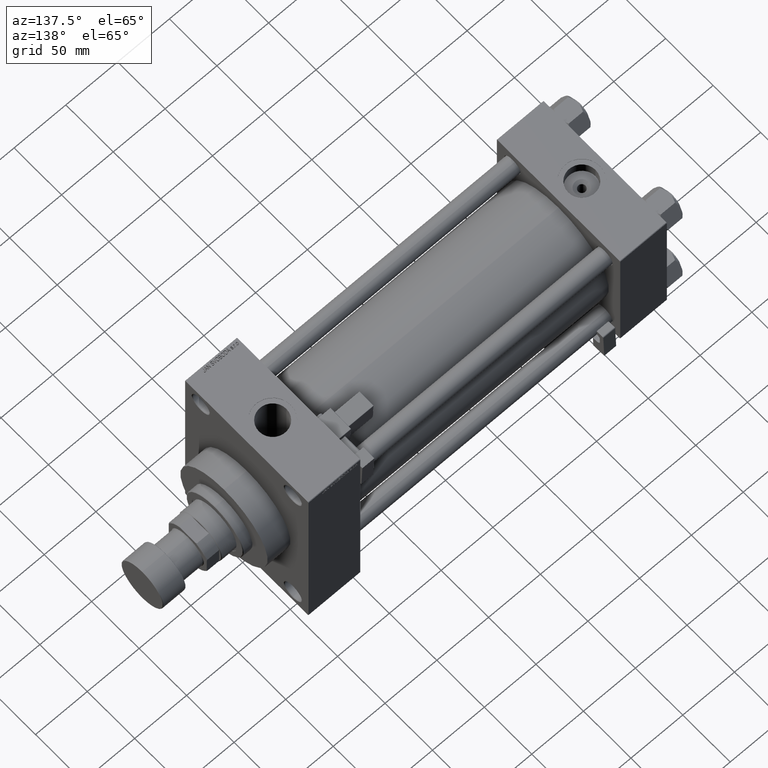
[diagram: clean part render]
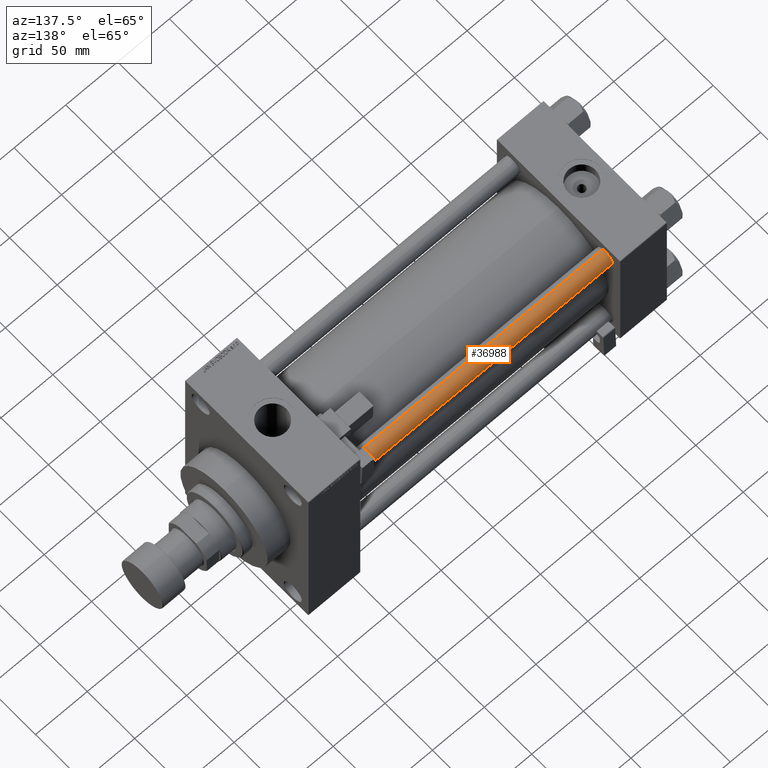
[diagram: same view with one face highlighted and labeled with its STEP entity id]
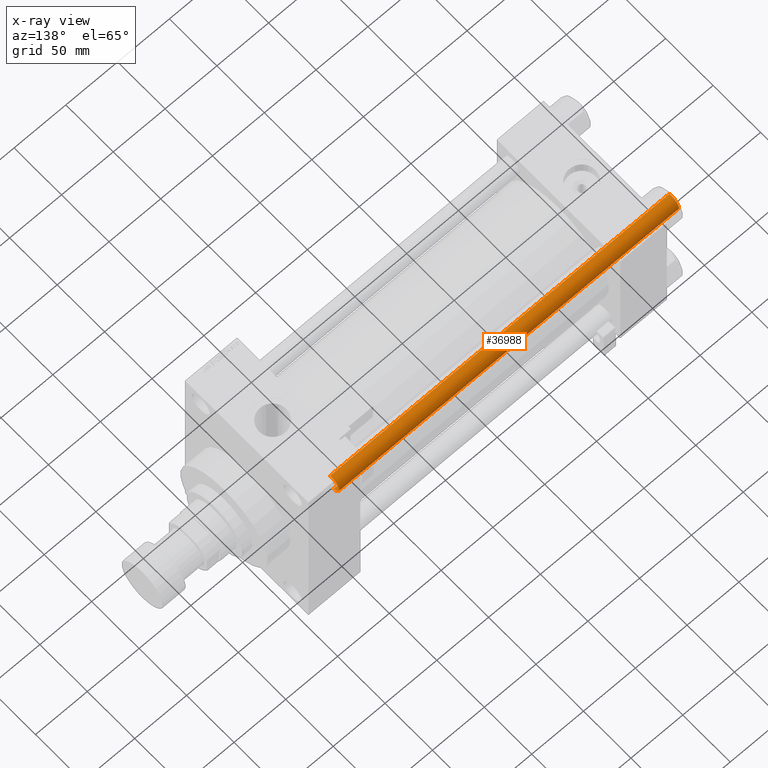
[diagram: x-ray of the same camera — body ghosted, the highlighted face saturated]
A machine part, auxiliary view. The second image highlights one B-rep face of the part: STEP entity #36988.
The next image is the same camera in x-ray: the body ghosted, the highlighted face saturated — about 0% of this face is hidden behind the body in this view.
In plain terms, the highlighted cylindrical surface (edge-blend (fillet) strip) has radius 8 mm, axis along (-1, -0, 0).
Its self-contained STEP definition (entity closure, byte-faithful):
#730 = EDGE_CURVE ( 'NONE', #21113, #34640, #20180, .T. ) ;
#2906 = VECTOR ( 'NONE', #42761, 1000.000000000000000 ) ;
#3926 = CARTESIAN_POINT ( 'NONE',  ( -8.000000000000000000, 0.000000000000000000, 329.0000000000000000 ) ) ;
#5962 = DIRECTION ( 'NONE',  ( 1.000000000000000000, 0.000000000000000000, 0.000000000000000000 ) ) ;
#7072 = CARTESIAN_POINT ( 'NONE',  ( 8.000000000000000000, 9.797174393178825657E-16, 0.4999999999998894218 ) ) ;
#8963 = CARTESIAN_POINT ( 'NONE',  ( -8.000000000000000000, 0.000000000000000000, 0.4999999999998894218 ) ) ;
#10216 = EDGE_CURVE ( 'NONE', #15969, #34640, #25340, .T. ) ;
#10429 = DIRECTION ( 'NONE',  ( 0.000000000000000000, 0.000000000000000000, -1.000000000000000000 ) ) ;
#11409 = EDGE_LOOP ( 'NONE', ( #42206, #37894, #15067, #20922 ) ) ;
#11944 = CARTESIAN_POINT ( 'NONE',  ( 0.000000000000000000, 0.000000000000000000, 329.0000000000000000 ) ) ;
#14006 = EDGE_CURVE ( 'NONE', #30494, #15969, #23410, .T. ) ;
#15067 = ORIENTED_EDGE ( 'NONE', *, *, #10216, .T. ) ;
#15768 = FACE_OUTER_BOUND ( 'NONE', #11409, .T. ) ;
#15969 = VERTEX_POINT ( 'NONE', #7072 ) ;
#19645 = AXIS2_PLACEMENT_3D ( 'NONE', #45110, #28830, #5962 ) ;
#20180 = LINE ( 'NONE', #3926, #47033 ) ;
#20922 = ORIENTED_EDGE ( 'NONE', *, *, #730, .F. ) ;
#21113 = VERTEX_POINT ( 'NONE', #39314 ) ;
#22174 = AXIS2_PLACEMENT_3D ( 'NONE', #11944, #27448, #31531 ) ;
#22664 = AXIS2_PLACEMENT_3D ( 'NONE', #37677, #10429, #37417 ) ;
#23410 = LINE ( 'NONE', #47346, #2906 ) ;
#25340 = CIRCLE ( 'NONE', #19645, 8.000000000000000000 ) ;
#27448 = DIRECTION ( 'NONE',  ( -0.000000000000000000, -0.000000000000000000, -1.000000000000000000 ) ) ;
#28830 = DIRECTION ( 'NONE',  ( -0.000000000000000000, -0.000000000000000000, 1.000000000000000000 ) ) ;
#30494 = VERTEX_POINT ( 'NONE', #48570 ) ;
#31531 = DIRECTION ( 'NONE',  ( -1.000000000000000000, 0.000000000000000000, 0.000000000000000000 ) ) ;
#34640 = VERTEX_POINT ( 'NONE', #8963 ) ;
#35701 = DIRECTION ( 'NONE',  ( -0.000000000000000000, -0.000000000000000000, -1.000000000000000000 ) ) ;
#36988 = ADVANCED_FACE ( 'NONE', ( #15768 ), #46811, .T. ) ;
#37417 = DIRECTION ( 'NONE',  ( 1.000000000000000000, 0.000000000000000000, 0.000000000000000000 ) ) ;
#37677 = CARTESIAN_POINT ( 'NONE',  ( 0.000000000000000000, 0.000000000000000000, 328.5000000000000000 ) ) ;
#37894 = ORIENTED_EDGE ( 'NONE', *, *, #14006, .T. ) ;
#39314 = CARTESIAN_POINT ( 'NONE',  ( -8.000000000000000000, 0.000000000000000000, 328.5000000000000000 ) ) ;
#39832 = EDGE_CURVE ( 'NONE', #21113, #30494, #44608, .T. ) ;
#42206 = ORIENTED_EDGE ( 'NONE', *, *, #39832, .T. ) ;
#42761 = DIRECTION ( 'NONE',  ( -0.000000000000000000, -0.000000000000000000, -1.000000000000000000 ) ) ;
#44608 = CIRCLE ( 'NONE', #22664, 8.000000000000000000 ) ;
#45110 = CARTESIAN_POINT ( 'NONE',  ( 0.000000000000000000, 0.000000000000000000, 0.4999999999998894218 ) ) ;
#46811 = CYLINDRICAL_SURFACE ( 'NONE', #22174, 8.000000000000000000 ) ;
#47033 = VECTOR ( 'NONE', #35701, 1000.000000000000000 ) ;
#47346 = CARTESIAN_POINT ( 'NONE',  ( 8.000000000000000000, 9.797174393178825657E-16, 329.0000000000000000 ) ) ;
#48570 = CARTESIAN_POINT ( 'NONE',  ( 8.000000000000000000, 9.797174393178825657E-16, 328.5000000000000000 ) ) ;